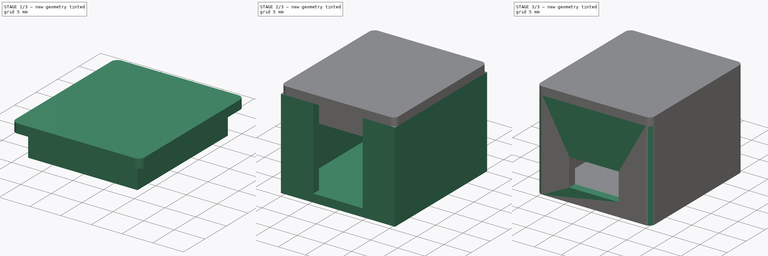
[diagram: build sequence overview — one tinted view per stage of 3, left to right]
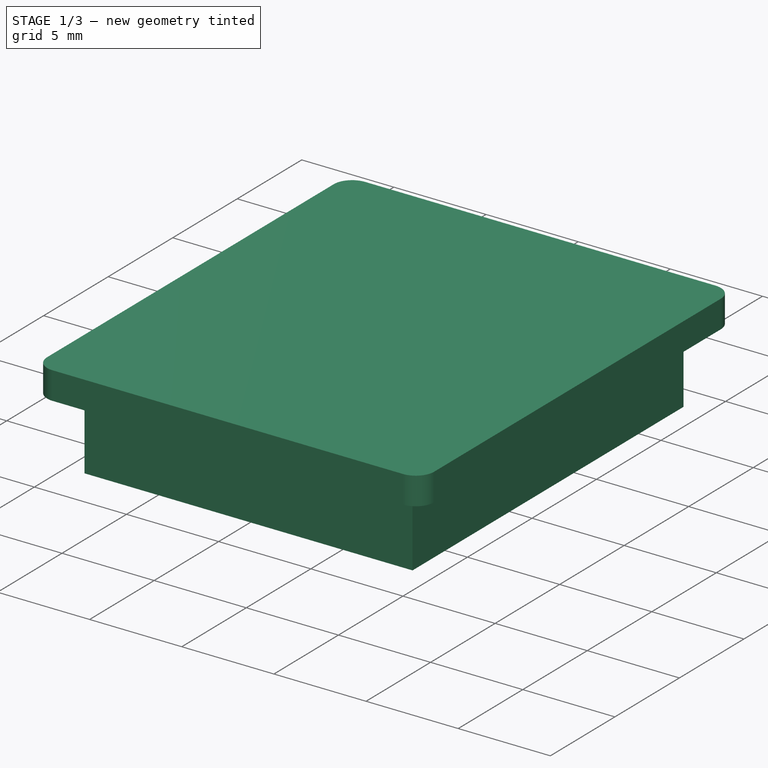
[diagram: stage 1 of 3 — iso view after this stage's code; geometry added in this stage tinted green]
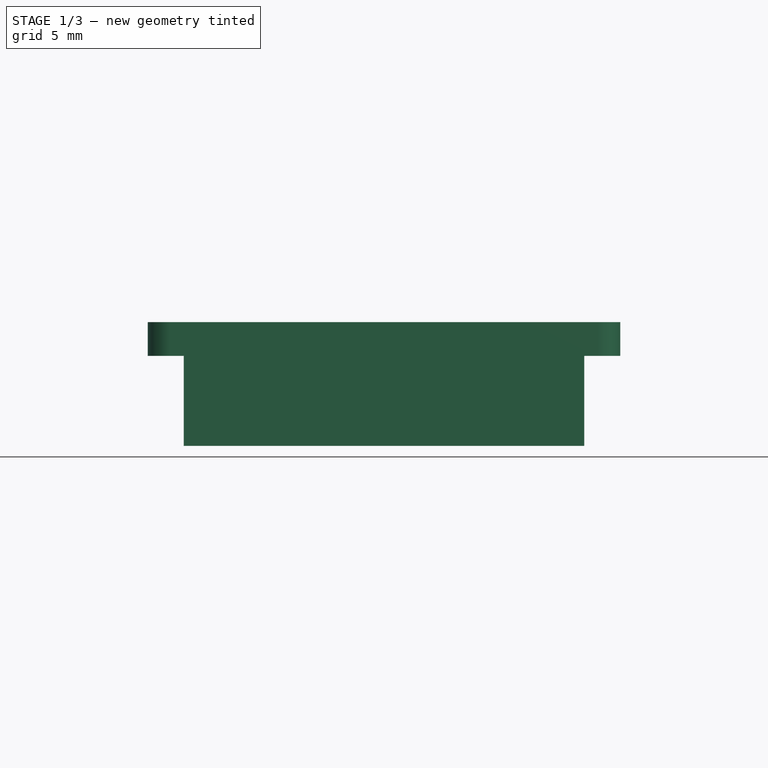
[diagram: stage 1 of 3 — front view after this stage's code; geometry added in this stage tinted green]
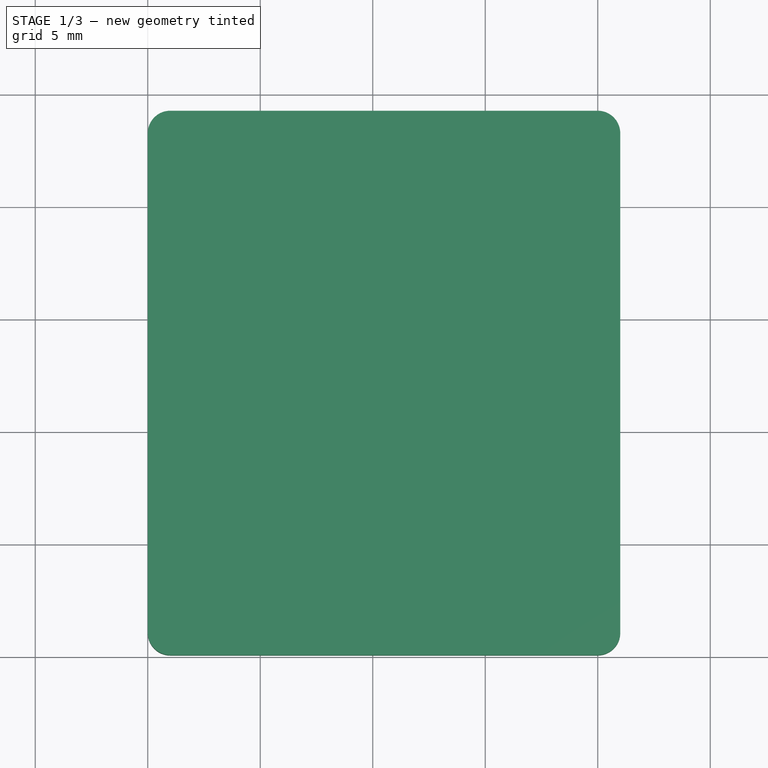
[diagram: stage 1 of 3 — top view after this stage's code; geometry added in this stage tinted green]
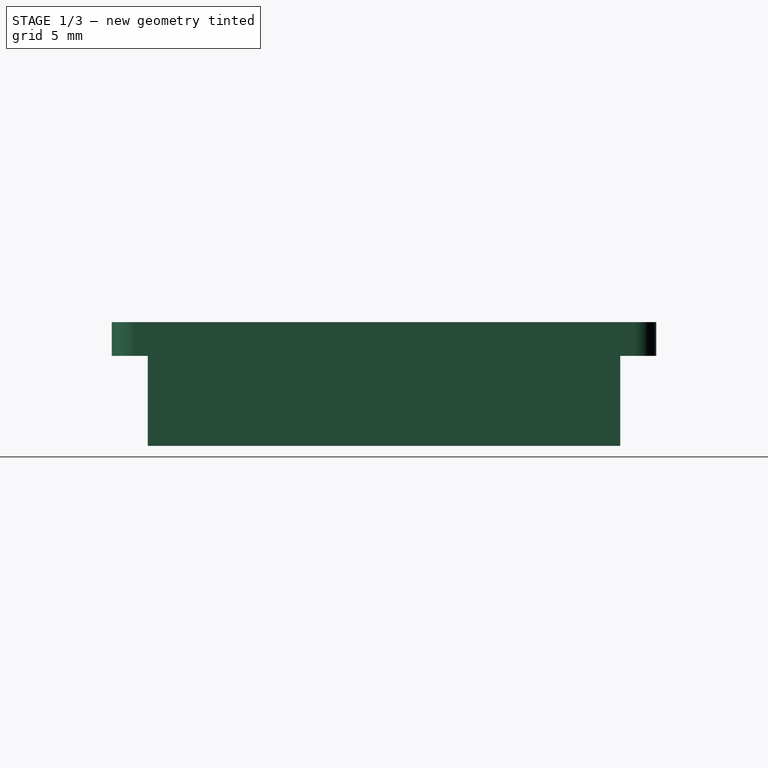
[diagram: stage 1 of 3 — right view after this stage's code; geometry added in this stage tinted green]
FCSTD DOCUMENT  (FreeCAD 0.19R24291 (Git))
Label: PicoDitDah_Case
License: All rights reserved
LicenseURL: http://en.wikipedia.org/wiki/All_rights_reserved
objects: Sketcher::SketchObject×6, PartDesign::Pad×5, PartDesign::Fillet×2, PartDesign::Body×2, Spreadsheet::Sheet×1, PartDesign::Pocket×1
note: 24 computed .brp shape members not serialized (recipe doc carries the construction recipe); baked Part::Feature solids carry a one-line shape summary decoded from their .brp

FEATURE [PartDesign::Pad] Pad003
  Direction = (1,1,1)
  Length = 4
  Length2 = 100
  Placement = pos=(0,0,16.5) rot=(0,0,1;0rad)
  Profile = -> Sketch004
  Refine = true
  Reversed = true
  Type = 0
  expr: Length = <<Params>>.Cover_Snap
FEATURE [Sketcher::SketchObject] Sketch005
  FullyConstrained = true
  MapMode = 5
  Placement = pos=(0,0,16.5) rot=(0,0,1;0rad)
  Support = -> [Pad003]
  expr: Constraints[9] = <<Params>>.QTPy_Width + 2 * <<Params>>.Wall_Thickness
  expr: Constraints[10] = <<Params>>.QTPy_Depth + 2 * <<Params>>.Wall_Thickness
  sketch-geometry (4):
    g0: LineSegment StartX=0 StartY=0 StartZ=0 EndX=21 EndY=0 EndZ=0
    g1: LineSegment StartX=21 StartY=0 StartZ=0 EndX=21 EndY=24.2 EndZ=0
    g2: LineSegment StartX=21 StartY=24.2 StartZ=0 EndX=0 EndY=24.2 EndZ=0
    g3: LineSegment StartX=0 StartY=24.2 StartZ=0 EndX=0 EndY=0 EndZ=0
  constraints (11):
    c: Coincident(g0,g1)
    c: Coincident(g1,g2)
    c: Coincident(g2,g3)
    c: Coincident(g3,g0)
    c: Horizontal(g0)
    c: Horizontal(g2)
    c: Vertical(g1)
    c: Vertical(g3)
    c: Coincident(g0,g-1)
    c: Distance(g3) = 24.2
    c: Distance(g0) = 21
FEATURE [PartDesign::Pad] Pad004
  BaseFeature = -> Pad003
  Direction = (1,1,1)
  Length = 1.5
  Length2 = 100
  Placement = pos=(0,0,16.5) rot=(0,0,1;0rad)
  Profile = -> Sketch005
  Refine = true
  Type = 0
  expr: Length = <<Params>>.Wall_Thickness
FEATURE [PartDesign::Body] Body  label="Case_Bottom"
  Group = -> [Sketch,Pad,Sketch001,Pad001,Sketch002,Pad002,Sketch006,Pocket,Fillet]
  Origin = -> Origin
  Tip = -> Fillet
FEATURE [PartDesign::Fillet] Fillet001
  Base = -> Pad004 [Edge1,Edge2,Edge5,Edge8]
  BaseFeature = -> Pad004
  Placement = pos=(0,0,16.5) rot=(0,0,1;0rad)
  Radius = 1
  Refine = true
  SupportTransform = false
FEATURE [PartDesign::Body] Body001  label="Cover"
  Group = -> [Sketch004,Pad003,Sketch005,Pad004,Fillet001]
  Origin = -> Origin001
  Tip = -> Fillet001
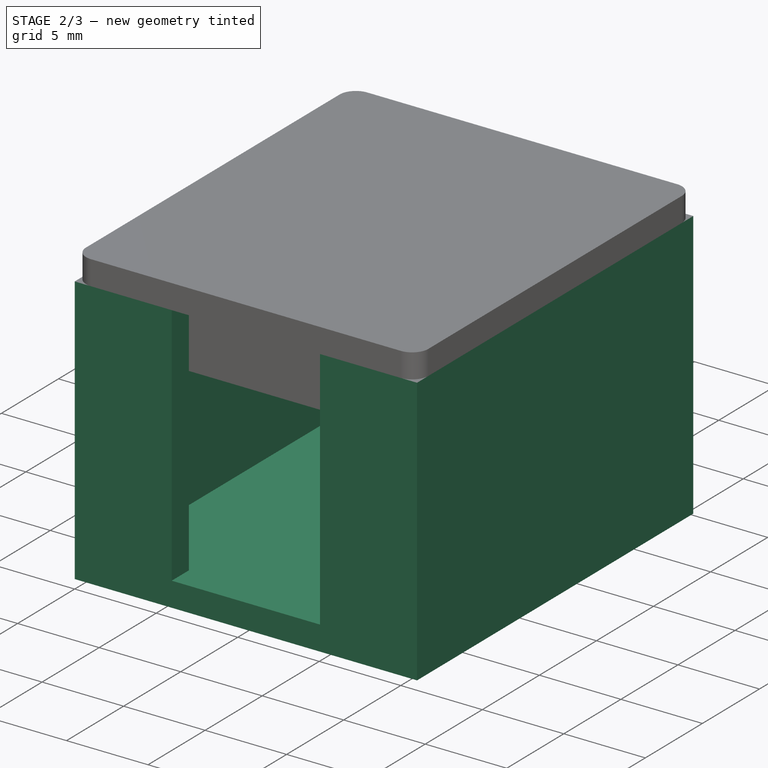
[diagram: stage 2 of 3 — iso view after this stage's code; geometry added in this stage tinted green]
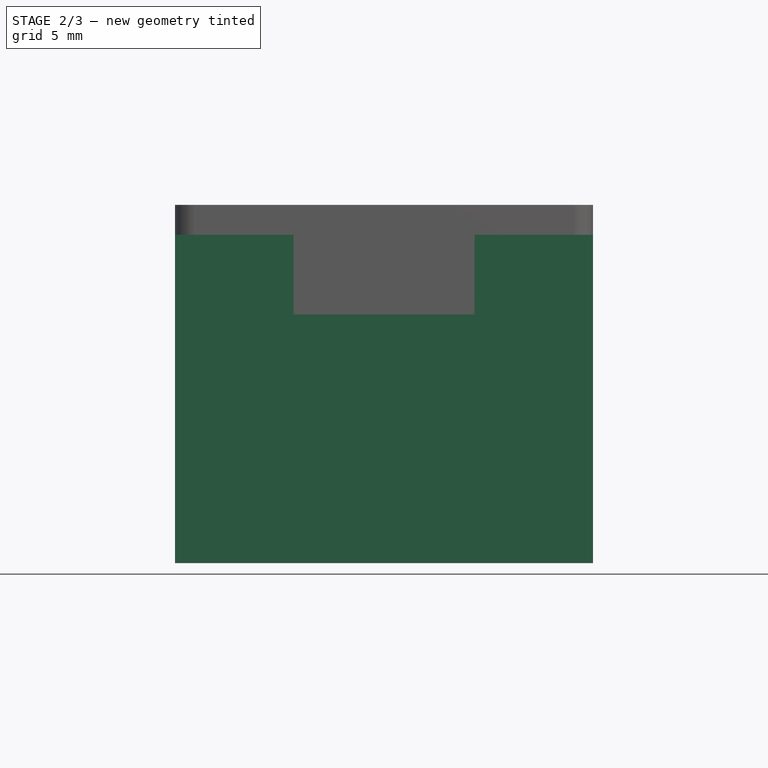
[diagram: stage 2 of 3 — front view after this stage's code; geometry added in this stage tinted green]
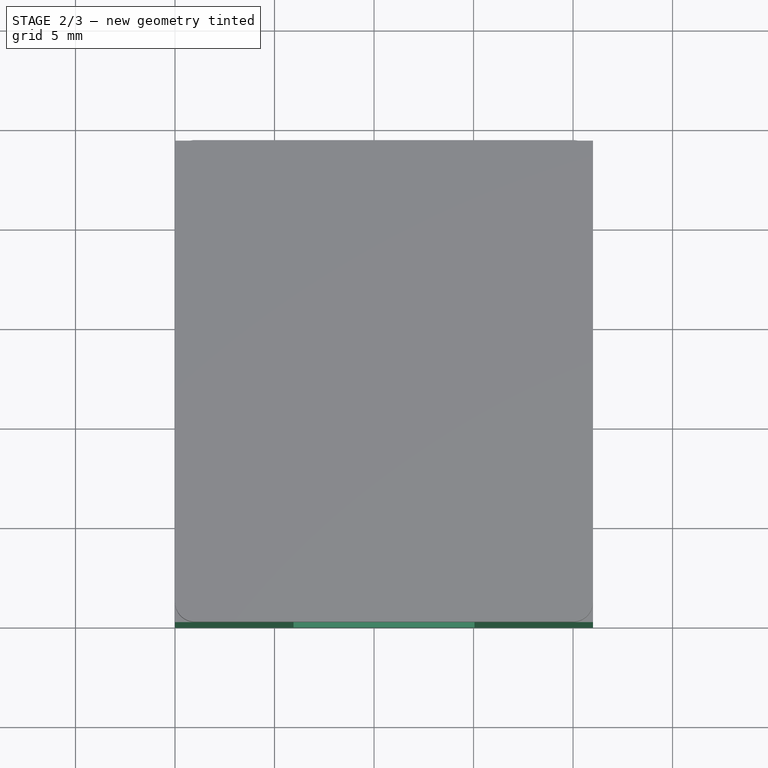
[diagram: stage 2 of 3 — top view after this stage's code; geometry added in this stage tinted green]
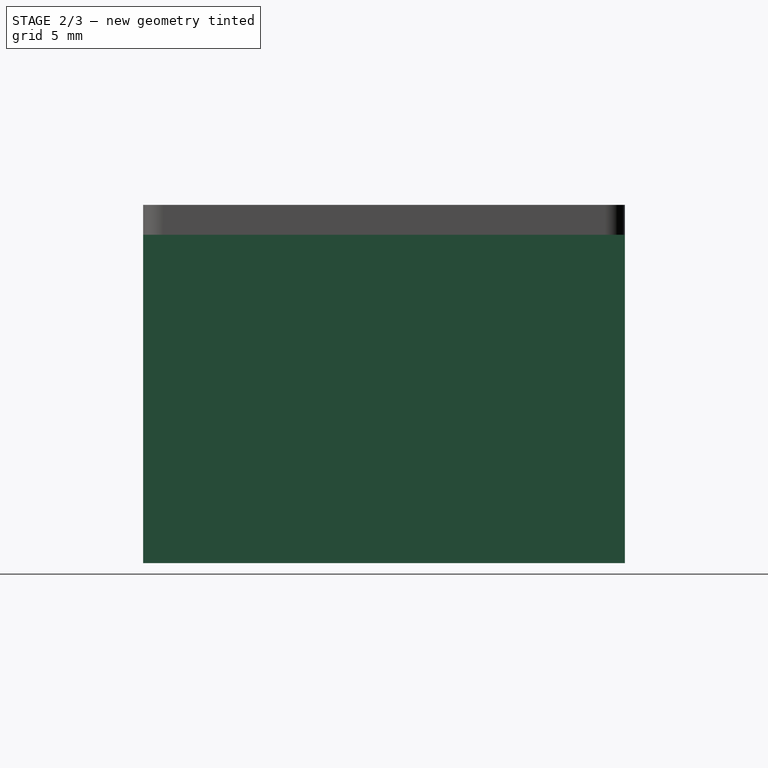
[diagram: stage 2 of 3 — right view after this stage's code; geometry added in this stage tinted green]
FEATURE [Spreadsheet::Sheet] Spreadsheet  label="Params"
  cells = A1=Wall_Thickness; B1(Wall_Thickness)==1.5mm; A2=Tolerance; B2(Tolerance)==0.2mm; A3=QTPy_Width; B3(QTPy_Width)==21mm + Tolerance; A4=QTPy_Depth; B4(QTPy_Depth)==17.8mm + Tolerance; A5=QTPy_PCB_Height; B5(QTPy_PCB_Height)==1.65mm; A6=QTPy_PCB_Bottom_Height; B6(QTPy_PCB_Bottom_Height)==1mm; A7=QTPy_Pad_Width; B7(QTPy_Pad_Width)==2mm; A8=QTPy_USB_Width; B8(QTPy_USB_Width)==9.1mm; A9=QTPy_USB_Height; B9(QTPy_USB_Height)==5.1mm; A10=Jack_Depth; B10(Jack_Depth)==6mm; A11=Jack_Diameter; B11(Jack_Diameter)==5.8mm; A12=Jack_Diameter_Outer; B12(Jack_Diameter_Outer)==8mm; A13=Jack_Distance_Bottom; B13(Jack_Distance_Bottom)==6mm; A14=Jack_Distance_Top; B14(Jack_Distance_Top)==1mm; A15=Cover_Snap; B15(Cover_Snap)==4mm
FEATURE [Sketcher::SketchObject] Sketch
  FullyConstrained = true
  MapMode = 5
  Support = -> [XY_Plane]
  expr: Constraints[10] = <<Params>>.QTPy_Depth + 2 * <<Params>>.Wall_Thickness
  expr: Constraints[9] = <<Params>>.QTPy_Width + 2 * <<Params>>.Wall_Thickness
  sketch-geometry (4):
    g0: LineSegment StartX=0 StartY=0 StartZ=0 EndX=21 EndY=0 EndZ=0
    g1: LineSegment StartX=21 StartY=0 StartZ=0 EndX=21 EndY=24.2 EndZ=0
    g2: LineSegment StartX=21 StartY=24.2 StartZ=0 EndX=0 EndY=24.2 EndZ=0
    g3: LineSegment StartX=0 StartY=24.2 StartZ=0 EndX=0 EndY=0 EndZ=0
  constraints (11):
    c: Coincident(g0,g1)
    c: Coincident(g1,g2)
    c: Coincident(g2,g3)
    c: Coincident(g3,g0)
    c: Horizontal(g0)
    c: Horizontal(g2)
    c: Vertical(g1)
    c: Vertical(g3)
    c: Coincident(g0,g-1)
    c: Distance(g3) = 24.2
    c: Distance(g2) = 21
FEATURE [PartDesign::Pad] Pad
  Direction = (1,1,1)
  Length = 1.5
  Length2 = 100
  Profile = -> Sketch
  Refine = true
  Type = 0
  expr: Length = <<Params>>.Wall_Thickness
FEATURE [Sketcher::SketchObject] Sketch001
  ExternalGeometry = -> [Pad]
  FullyConstrained = true
  MapMode = 5
  Placement = pos=(0,0,1.5) rot=(0,0,1;0rad)
  Support = -> [Pad]
  expr: Constraints[18] = <<Params>>.QTPy_USB_Width
  expr: Constraints[28] = <<Params>>.Wall_Thickness
  expr: Constraints[29] = <<Params>>.Wall_Thickness
  expr: Constraints[30] = <<Params>>.Wall_Thickness
  expr: Constraints[31] = <<Params>>.Wall_Thickness
  sketch-geometry (12):
    g0: LineSegment StartX=5.95 StartY=0 StartZ=0 EndX=0 EndY=0 EndZ=0
    g1: LineSegment StartX=15.05 StartY=0 StartZ=0 EndX=15.05 EndY=1.5 EndZ=0
    g2: LineSegment StartX=15.05 StartY=1.5 StartZ=0 EndX=19.5 EndY=1.5 EndZ=0
    g3: LineSegment StartX=19.5 StartY=1.5 StartZ=0 EndX=19.5 EndY=22.7 EndZ=0
    g4: LineSegment StartX=19.5 StartY=22.7 StartZ=0 EndX=1.5 EndY=22.7 EndZ=0
    g5: LineSegment StartX=1.5 StartY=22.7 StartZ=0 EndX=1.5 EndY=1.5 EndZ=0
    g6: LineSegment StartX=1.5 StartY=1.5 StartZ=0 EndX=5.95 EndY=1.5 EndZ=0
    g7: LineSegment StartX=5.95 StartY=1.5 StartZ=0 EndX=5.95 EndY=0 EndZ=0
    g8: LineSegment StartX=0 StartY=0 StartZ=0 EndX=0 EndY=24.2 EndZ=0
    g9: LineSegment StartX=0 StartY=24.2 StartZ=0 EndX=21 EndY=24.2 EndZ=0
    g10: LineSegment StartX=21 StartY=24.2 StartZ=0 EndX=21 EndY=0 EndZ=0
    g11: LineSegment StartX=21 StartY=0 StartZ=0 EndX=15.05 EndY=0 EndZ=0
  constraints (32):
    c: PointOnObject(g0,g-1)
    c: Coincident(g0,g-1)
    c: PointOnObject(g1,g-1)
    c: Vertical(g1)
    c: Coincident(g1,g2)
    c: Horizontal(g2)
    c: Coincident(g2,g3)
    c: Vertical(g3)
    c: Coincident(g3,g4)
    c: Horizontal(g4)
    c: Coincident(g4,g5)
    c: Vertical(g5)
    c: Coincident(g5,g6)
    c: Horizontal(g6)
    c: Coincident(g6,g7)
    c: Coincident(g7,g0)
    c: Vertical(g7)
    c: Equal(g7,g1)
    c: Distance(g6,g1) = 9.1
    c: Equal(g6,g2)
    c: Coincident(g0,g8)
    c: Coincident(g8,g-3)
    c: Coincident(g8,g9)
    c: Coincident(g9,g-4)
    c: Coincident(g10,g9)
    c: Coincident(g10,g-5)
    c: Coincident(g11,g10)
    c: Coincident(g11,g1)
    c: Distance(g4,g8) = 1.5
    c: Distance(g4,g9) = 1.5
    c: Distance(g2,g11) = 1.5
    c: Distance(g2,g10) = 1.5
FEATURE [Sketcher::SketchObject] Sketch004
  FullyConstrained = true
  MapMode = 5
  Placement = pos=(0,0,16.5) rot=(0,0,1;0rad)
  expr: Constraints[24] = <<Params>>.Wall_Thickness
  expr: Constraints[31] = <<Params>>.Wall_Thickness + <<Params>>.Tolerance / 2
  expr: Constraints[25] = <<Params>>.Wall_Thickness
  expr: Constraints[26] = <<Params>>.Wall_Thickness
  expr: Constraints[27] = <<Params>>.Wall_Thickness
  expr: Constraints[30] = <<Params>>.Wall_Thickness + <<Params>>.Tolerance / 2
  expr: Constraints[29] = <<Params>>.QTPy_Depth - <<Params>>.Tolerance
  expr: Constraints[34] = <<Params>>.Jack_Diameter_Outer + 2 * <<Params>>.Tolerance
  expr: Constraints[32] = <<Params>>.QTPy_Width - <<Params>>.Tolerance
  sketch-geometry (12):
    g0: LineSegment StartX=6.3 StartY=22.6 StartZ=0 EndX=1.6 EndY=22.6 EndZ=0
    g1: LineSegment StartX=1.6 StartY=22.6 StartZ=0 EndX=1.6 EndY=1.6 EndZ=0
    g2: LineSegment StartX=1.6 StartY=1.6 StartZ=0 EndX=19.4 EndY=1.6 EndZ=0
    g3: LineSegment StartX=19.4 StartY=1.6 StartZ=0 EndX=19.4 EndY=22.6 EndZ=0
    g4: LineSegment StartX=19.4 StartY=22.6 StartZ=0 EndX=14.7 EndY=22.6 EndZ=0
    g5: LineSegment StartX=14.7 StartY=22.6 StartZ=0 EndX=14.7 EndY=21.1 EndZ=0
    g6: LineSegment StartX=14.7 StartY=21.1 StartZ=0 EndX=17.9 EndY=21.1 EndZ=0
    g7: LineSegment StartX=17.9 StartY=21.1 StartZ=0 EndX=17.9 EndY=3.1 EndZ=0
    g8: LineSegment StartX=17.9 StartY=3.1 StartZ=0 EndX=3.1 EndY=3.1 EndZ=0
    g9: LineSegment StartX=3.1 StartY=3.1 StartZ=0 EndX=3.1 EndY=21.1 EndZ=0
    g10: LineSegment StartX=3.1 StartY=21.1 StartZ=0 EndX=6.3 EndY=21.1 EndZ=0
    g11: LineSegment StartX=6.3 StartY=21.1 StartZ=0 EndX=6.3 EndY=22.6 EndZ=0
  constraints (36):
    c: Horizontal(g0)
    c: Coincident(g0,g1)
    c: Vertical(g1)
    c: Coincident(g1,g2)
    c: Horizontal(g2)
    c: Coincident(g2,g3)
    c: Vertical(g3)
    c: Coincident(g3,g4)
    c: Horizontal(g4)
    c: Coincident(g4,g5)
    c: Vertical(g5)
    c: Coincident(g5,g6)
    c: Horizontal(g6)
    c: Coincident(g6,g7)
    c: Vertical(g7)
    c: Coincident(g7,g8)
    c: Horizontal(g8)
    c: Coincident(g8,g9)
    c: Vertical(g9)
    c: Coincident(g9,g10)
    c: Horizontal(g10)
    c: Coincident(g10,g11)
    c: Coincident(g11,g0)
    c: Vertical(g11)
    c: Distance(g9,g0) = 1.5
    c: Distance(g9,g1) = 1.5
    c: Distance(g7,g2) = 1.5
    c: Distance(g7,g3) = 1.5
    c: Equal(g11,g5)
    c: Distance(g2) = 17.8
    c: Distance(g1,g-2) = 1.6
    c: Distance(g1,g-1) = 1.6
    c: Distance(g1) = 21
    c: Equal(g1,g3)
    c: Distance(g10,g5) = 8.4
    c: Equal(g10,g6)
FEATURE [PartDesign::Pad] Pad001
  BaseFeature = -> Pad
  Direction = (1,1,1)
  Length = 15
  Length2 = 100
  Profile = -> Sketch001
  Refine = true
  Type = 0
  expr: Length = <<Params>>.Jack_Distance_Bottom + <<Params>>.Jack_Diameter_Outer + <<Params>>.Jack_Distance_Top
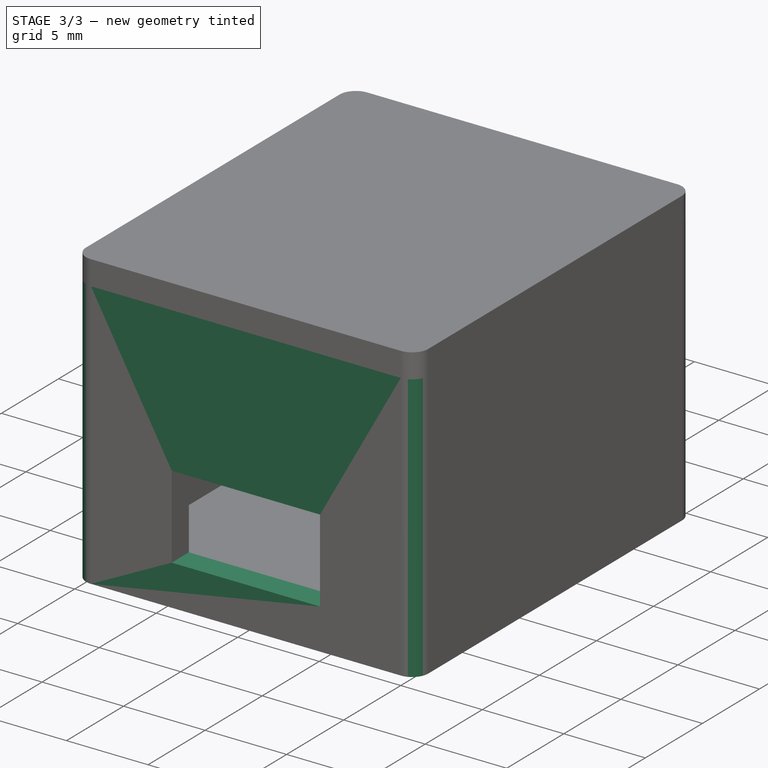
[diagram: stage 3 of 3 — iso view after this stage's code; geometry added in this stage tinted green]
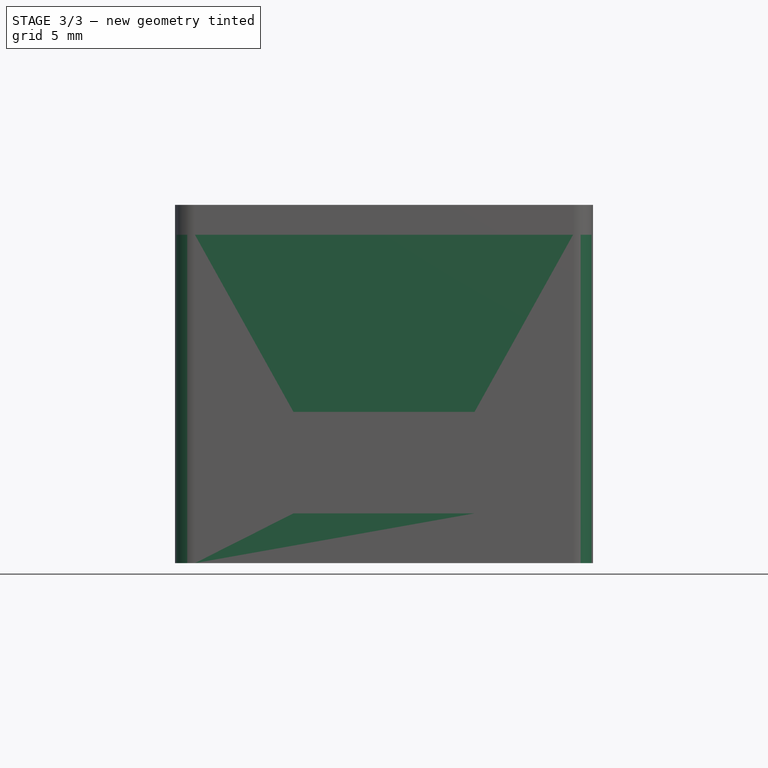
[diagram: stage 3 of 3 — front view after this stage's code; geometry added in this stage tinted green]
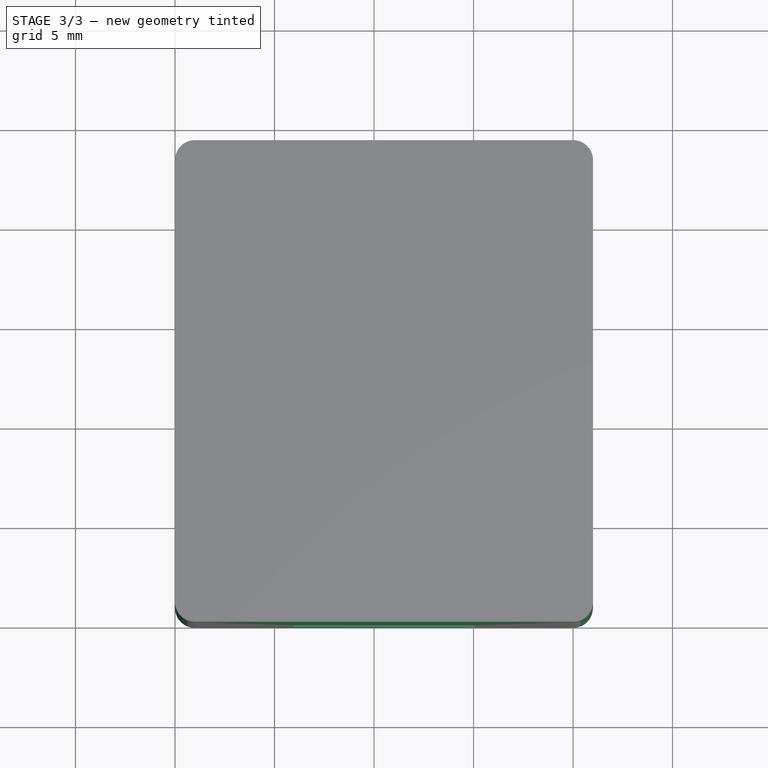
[diagram: stage 3 of 3 — top view after this stage's code; geometry added in this stage tinted green]
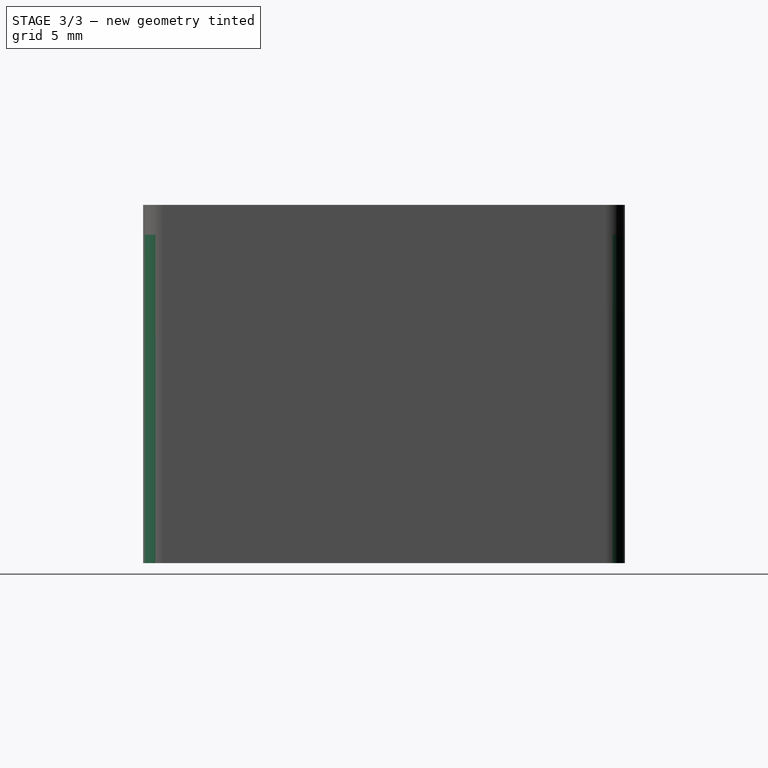
[diagram: stage 3 of 3 — right view after this stage's code; geometry added in this stage tinted green]
FEATURE [Sketcher::SketchObject] Sketch002
  ExternalGeometry = -> [Pad001]
  FullyConstrained = true
  MapMode = 5
  Placement = pos=(5.95,0,0) rot=(0.57735,0.57735,0.57735;2.0944rad)
  Support = -> [Pad001]
  expr: Constraints[21] = <<Params>>.QTPy_PCB_Bottom_Height
  expr: Constraints[10] = <<Params>>.QTPy_PCB_Bottom_Height + <<Params>>.QTPy_USB_Height
  sketch-geometry (8):
    g0: LineSegment StartX=1.5 StartY=16.5 StartZ=0 EndX=0 EndY=16.5 EndZ=0
    g1: LineSegment StartX=0 StartY=16.5 StartZ=0 EndX=0 EndY=7.6 EndZ=0
    g2: LineSegment StartX=0 StartY=7.6 StartZ=0 EndX=1.5 EndY=7.6 EndZ=0
    g3: LineSegment StartX=1.5 StartY=7.6 StartZ=0 EndX=1.5 EndY=16.5 EndZ=0
    g4: LineSegment StartX=0 StartY=1.5 StartZ=0 EndX=1.5 EndY=1.5 EndZ=0
    g5: LineSegment StartX=1.5 StartY=1.5 StartZ=0 EndX=1.5 EndY=2.5 EndZ=0
    g6: LineSegment StartX=1.5 StartY=2.5 StartZ=0 EndX=0 EndY=2.5 EndZ=0
    g7: LineSegment StartX=0 StartY=2.5 StartZ=0 EndX=0 EndY=1.5 EndZ=0
  constraints (22):
    c: Coincident(g0,g1)
    c: Coincident(g1,g2)
    c: Coincident(g2,g3)
    c: Coincident(g3,g0)
    c: Horizontal(g0)
    c: Horizontal(g2)
    c: Vertical(g1)
    c: Vertical(g3)
    c: Coincident(g0,g-4)
    c: PointOnObject(g1,g-5)
    c: Distance(g2,g-6) = 6.1
    c: Coincident(g4,g5)
    c: Coincident(g5,g6)
    c: Coincident(g6,g7)
    c: Coincident(g7,g4)
    c: Horizontal(g4)
    c: Horizontal(g6)
    c: Vertical(g5)
    c: Vertical(g7)
    c: Coincident(g4,g-6)
    c: PointOnObject(g5,g-3)
    c: Distance(g5) = 1
FEATURE [PartDesign::Pad] Pad002
  BaseFeature = -> Pad001
  Direction = (1,1,1)
  Length = 9.1
  Length2 = 100
  Profile = -> Sketch002
  Refine = true
  Type = 0
  expr: Length = <<Params>>.QTPy_USB_Width
FEATURE [Sketcher::SketchObject] Sketch006
  ExternalGeometry = -> [Pad002]
  FullyConstrained = true
  MapMode = 5
  Placement = pos=(0,24.2,0) rot=(0,0.707107,0.707107;3.14159rad)
  Support = -> [Pad002]
  expr: Constraints[0] = <<Params>>.Jack_Diameter + 2 * <<Params>>.Tolerance
  expr: Constraints[1] = <<Params>>.Jack_Diameter_Outer / 2 + <<Params>>.Jack_Distance_Top
  sketch-geometry (3):
    g0: Circle CenterX=-10.5 CenterY=11.5 CenterZ=0 NormalX=0 NormalY=0 NormalZ=1 AngleXU=0 Radius=3.1
    g1: LineSegment StartX=-10.5 StartY=11.5 StartZ=0 EndX=-21 EndY=11.5 EndZ=0
    g2: LineSegment StartX=-10.5 StartY=11.5 StartZ=0 EndX=0 EndY=11.5 EndZ=0
  constraints (9):
    c: Diameter(g0) = 6.2
    c: Distance(g0,g-3) = 5
    c: Coincident(g1,g0)
    c: PointOnObject(g1,g-4)
    c: Horizontal(g1)
    c: Coincident(g2,g0)
    c: PointOnObject(g2,g-5)
    c: Horizontal(g2)
    c: Equal(g2,g1)
FEATURE [PartDesign::Pocket] Pocket
  BaseFeature = -> Pad002
  Length = 1.5
  Length2 = 100
  Profile = -> Sketch006
  Refine = true
  Type = 0
  expr: Length = <<Params>>.Wall_Thickness
FEATURE [PartDesign::Fillet] Fillet
  Base = -> Pocket [Edge12,Edge15,Edge7,Edge5]
  BaseFeature = -> Pocket
  Radius = 1
  Refine = true
  SupportTransform = false
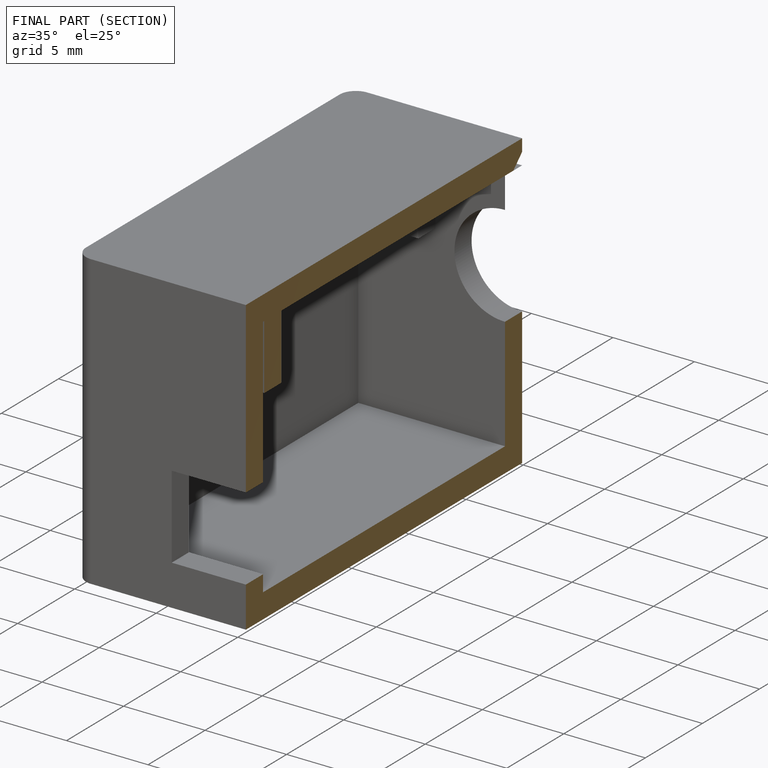
[diagram: finished part — half-section view (interior)]
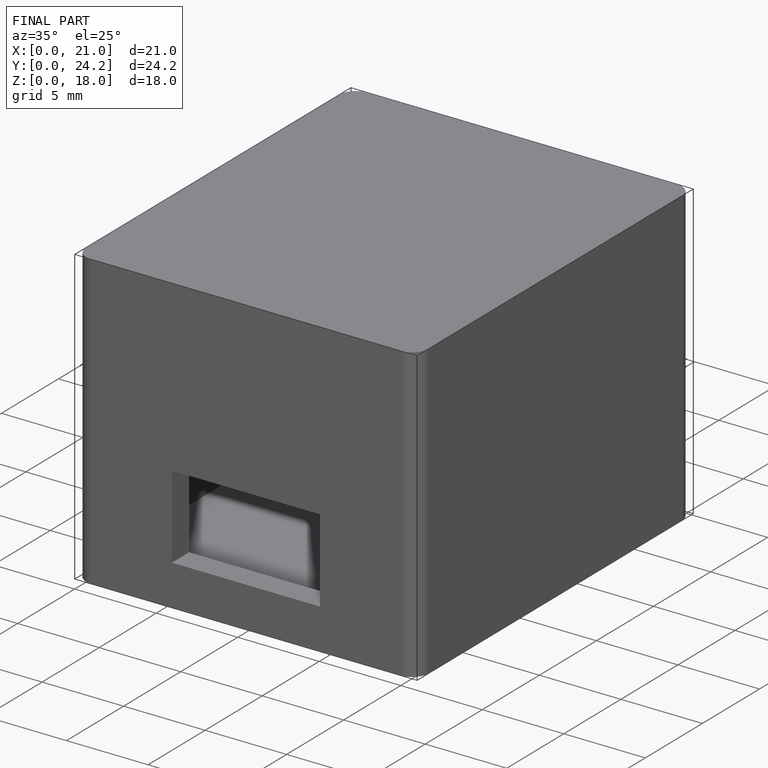
[diagram: finished part — iso view with bounding-box wireframe]
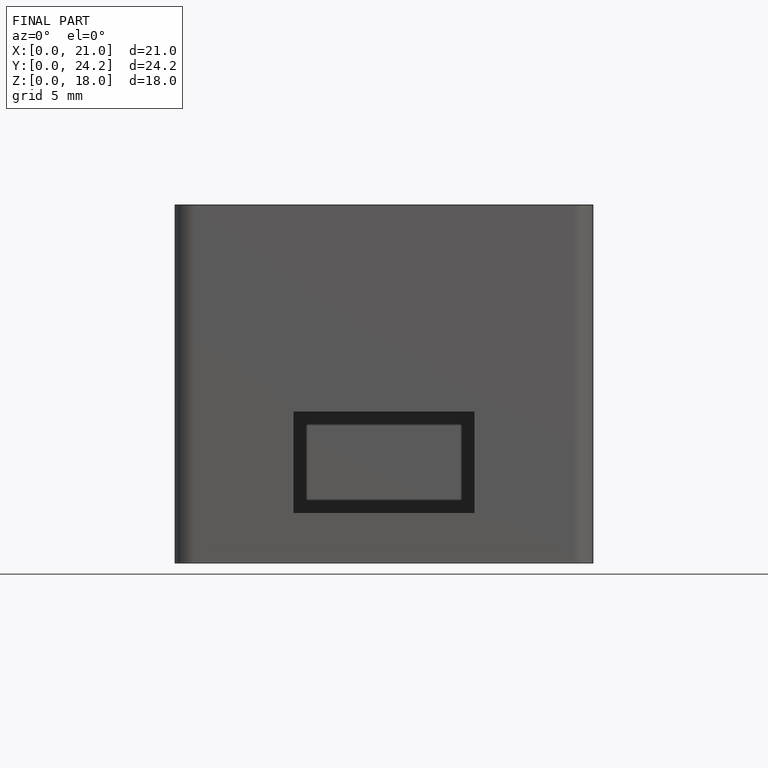
[diagram: finished part — front view with bounding-box wireframe]
